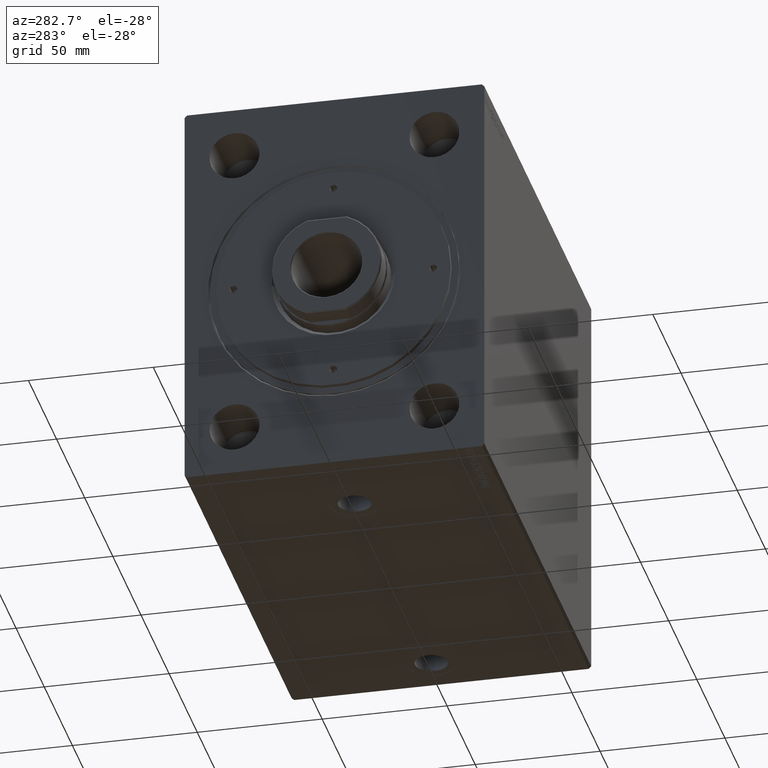
[diagram: clean part render]
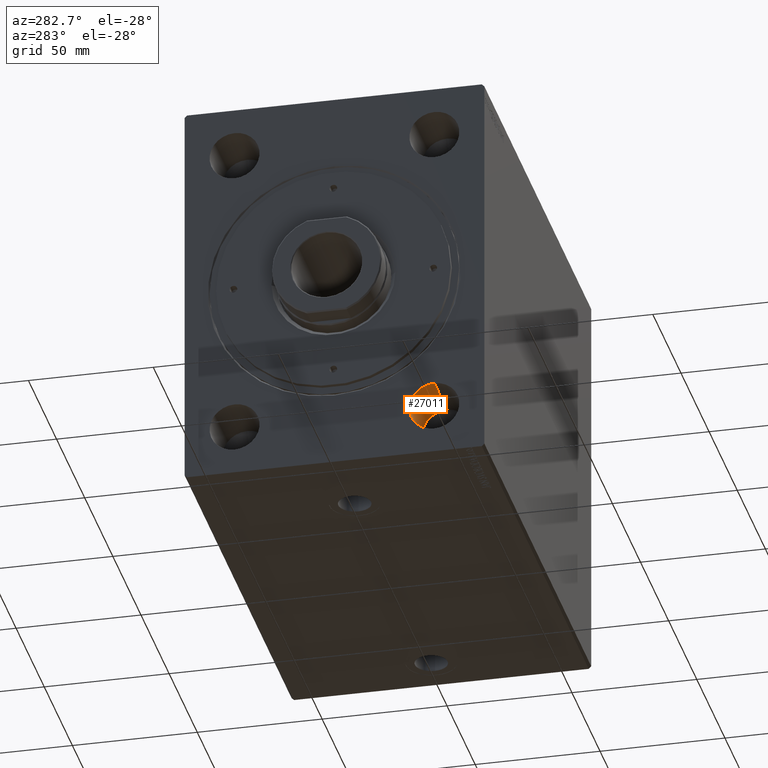
[diagram: same view with one face highlighted and labeled with its STEP entity id]
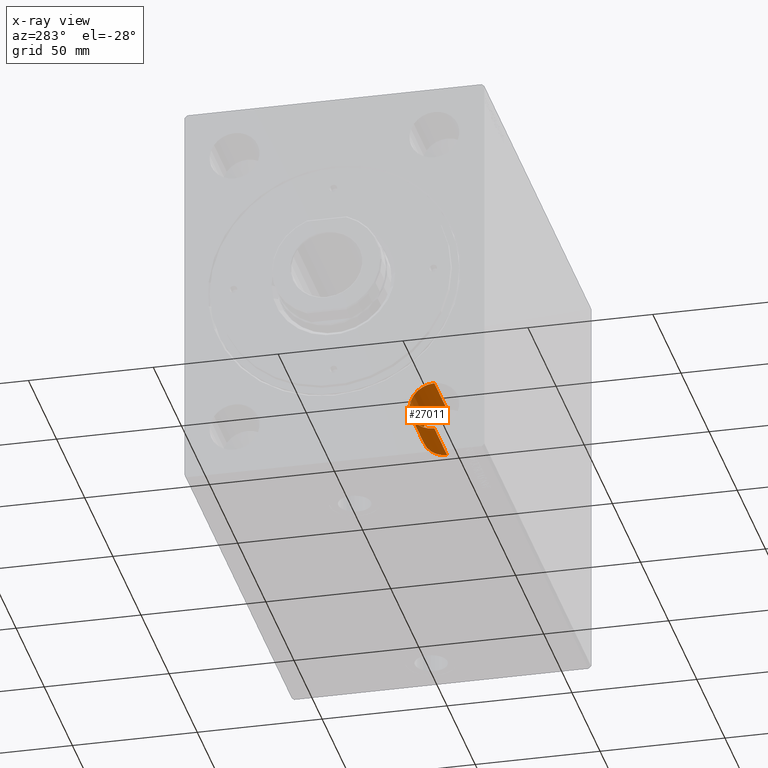
[diagram: x-ray of the same camera — body ghosted, the highlighted face saturated]
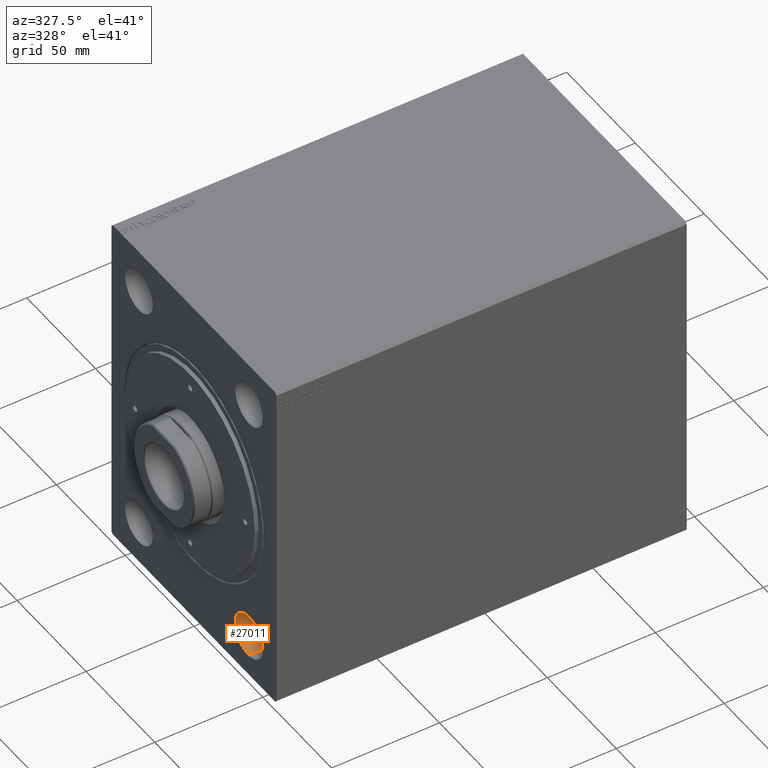
[diagram: same view with one face highlighted and labeled with its STEP entity id]
A machine part, auxiliary view. The second image highlights one B-rep face of the part: STEP entity #27011.
The next image is the same camera in x-ray: the body ghosted, the highlighted face saturated — about 0% of this face is hidden behind the body in this view.
A second angle (auxiliary view) of the same face is appended — the face is thin or edge-on in the first view.
In plain terms, the highlighted cylindrical surface (edge-blend (fillet) strip) has radius 10 mm, axis along (-1, -0, -0).
Its self-contained STEP definition (entity closure, byte-faithful):
#3445 = EDGE_CURVE ( 'NONE', #33933, #10026, #23828, .T. ) ;
#5638 = DIRECTION ( 'NONE',  ( -1.000000000000000000, -0.000000000000000000, -0.000000000000000000 ) ) ;
#10026 = VERTEX_POINT ( 'NONE', #35587 ) ;
#10432 = ORIENTED_EDGE ( 'NONE', *, *, #29310, .F. ) ;
#10487 = EDGE_LOOP ( 'NONE', ( #18422, #10432, #37245, #15357 ) ) ;
#15357 = ORIENTED_EDGE ( 'NONE', *, *, #17064, .T. ) ;
#15654 = CIRCLE ( 'NONE', #25621, 9.999999999999994671 ) ;
#15869 = DIRECTION ( 'NONE',  ( 0.000000000000000000, 0.000000000000000000, 1.000000000000000000 ) ) ;
#17064 = EDGE_CURVE ( 'NONE', #18780, #10026, #15654, .T. ) ;
#17407 = CARTESIAN_POINT ( 'NONE',  ( 7.347880794884116778E-16, -39.99999999999999289, -50.00000000000000000 ) ) ;
#17486 = DIRECTION ( 'NONE',  ( 0.000000000000000000, 0.000000000000000000, 1.000000000000000000 ) ) ;
#17535 = CARTESIAN_POINT ( 'NONE',  ( 0.000000000000000000, -39.99999999999999289, -50.00000000000000000 ) ) ;
#18422 = ORIENTED_EDGE ( 'NONE', *, *, #3445, .F. ) ;
#18780 = VERTEX_POINT ( 'NONE', #17407 ) ;
#19623 = CARTESIAN_POINT ( 'NONE',  ( 0.000000000000000000, -39.99999999999999289, -69.99999999999998579 ) ) ;
#21548 = CIRCLE ( 'NONE', #34309, 9.999999999999994671 ) ;
#23272 = CARTESIAN_POINT ( 'NONE',  ( 0.000000000000000000, -39.99999999999999289, -60.00000000000000000 ) ) ;
#23412 = CARTESIAN_POINT ( 'NONE',  ( 7.347880794884116778E-16, -39.99999999999999289, -60.00000000000000000 ) ) ;
#23828 = LINE ( 'NONE', #19623, #35404 ) ;
#23996 = DIRECTION ( 'NONE',  ( -1.000000000000000000, -0.000000000000000000, -0.000000000000000000 ) ) ;
#24164 = CARTESIAN_POINT ( 'NONE',  ( 22.67000000000000171, -39.99999999999999289, -60.00000000000000000 ) ) ;
#24337 = AXIS2_PLACEMENT_3D ( 'NONE', #23272, #43283, #27036 ) ;
#24346 = CARTESIAN_POINT ( 'NONE',  ( 22.67000000000000171, -39.99999999999999289, -50.00000000000000000 ) ) ;
#25072 = VECTOR ( 'NONE', #23996, 1000.000000000000000 ) ;
#25621 = AXIS2_PLACEMENT_3D ( 'NONE', #23412, #5638, #15869 ) ;
#26638 = CARTESIAN_POINT ( 'NONE',  ( 22.67000000000000171, -39.99999999999999289, -69.99999999999998579 ) ) ;
#27011 = ADVANCED_FACE ( 'NONE', ( #33914 ), #43064, .F. ) ;
#27036 = DIRECTION ( 'NONE',  ( 0.000000000000000000, 0.000000000000000000, 1.000000000000000000 ) ) ;
#27549 = LINE ( 'NONE', #17535, #25072 ) ;
#28961 = EDGE_CURVE ( 'NONE', #35365, #18780, #27549, .T. ) ;
#29310 = EDGE_CURVE ( 'NONE', #35365, #33933, #21548, .T. ) ;
#30483 = DIRECTION ( 'NONE',  ( -1.000000000000000000, -0.000000000000000000, -0.000000000000000000 ) ) ;
#33914 = FACE_OUTER_BOUND ( 'NONE', #10487, .T. ) ;
#33933 = VERTEX_POINT ( 'NONE', #26638 ) ;
#34309 = AXIS2_PLACEMENT_3D ( 'NONE', #24164, #37271, #17486 ) ;
#35365 = VERTEX_POINT ( 'NONE', #24346 ) ;
#35404 = VECTOR ( 'NONE', #30483, 1000.000000000000000 ) ;
#35587 = CARTESIAN_POINT ( 'NONE',  ( 7.347880794884116778E-16, -39.99999999999999289, -69.99999999999998579 ) ) ;
#37245 = ORIENTED_EDGE ( 'NONE', *, *, #28961, .T. ) ;
#37271 = DIRECTION ( 'NONE',  ( -1.000000000000000000, -0.000000000000000000, -0.000000000000000000 ) ) ;
#43064 = CYLINDRICAL_SURFACE ( 'NONE', #24337, 9.999999999999994671 ) ;
#43283 = DIRECTION ( 'NONE',  ( -1.000000000000000000, -0.000000000000000000, -0.000000000000000000 ) ) ;